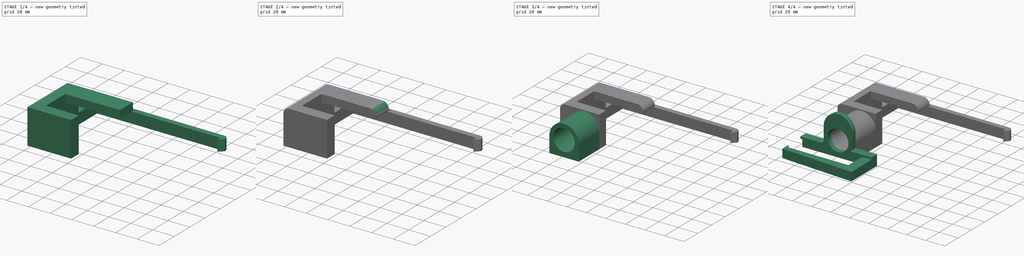
[diagram: build sequence overview — one tinted view per stage of 4, left to right]
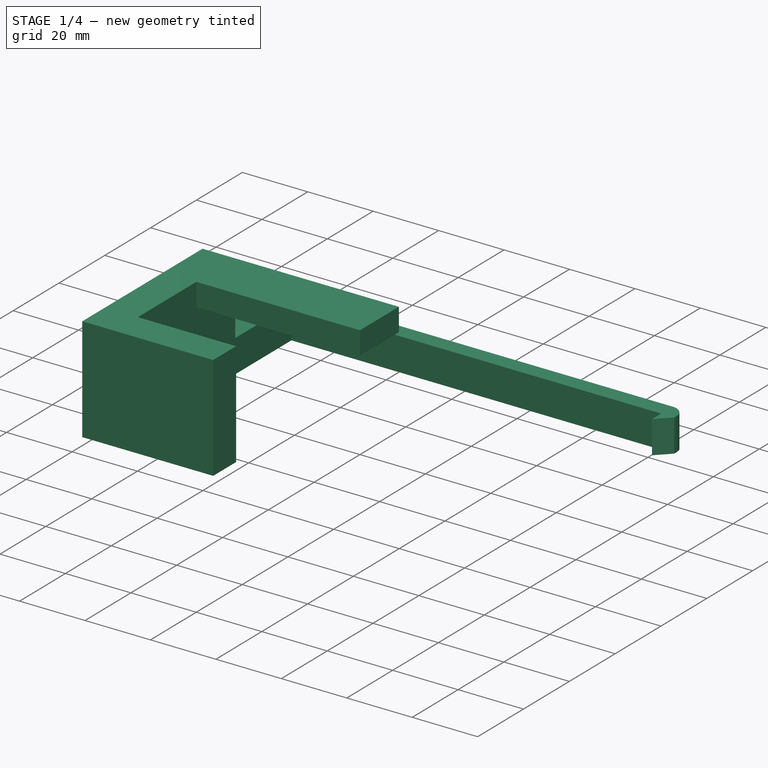
[diagram: stage 1 of 4 — iso view after this stage's code; geometry added in this stage tinted green]
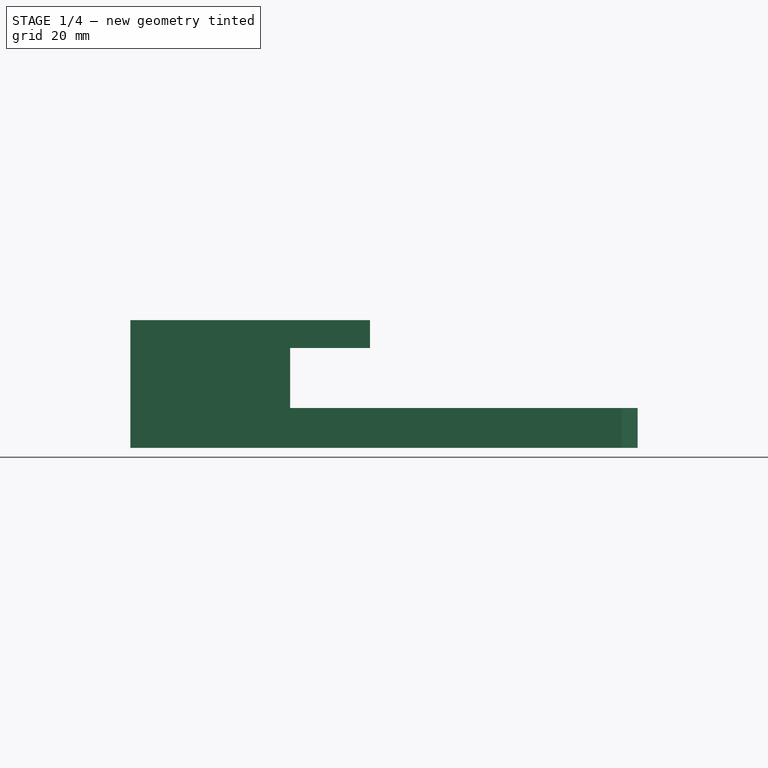
[diagram: stage 1 of 4 — front view after this stage's code; geometry added in this stage tinted green]
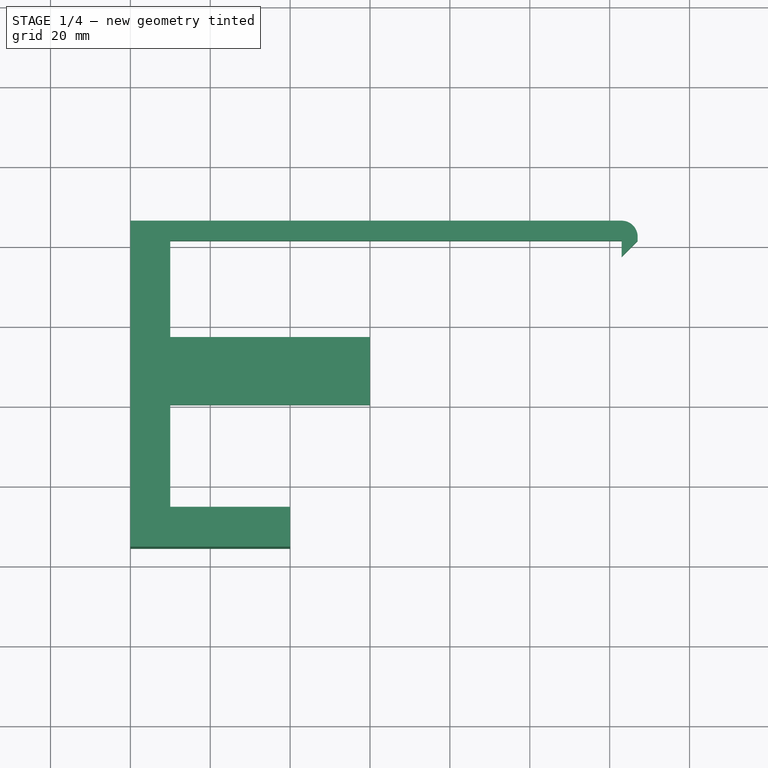
[diagram: stage 1 of 4 — top view after this stage's code; geometry added in this stage tinted green]
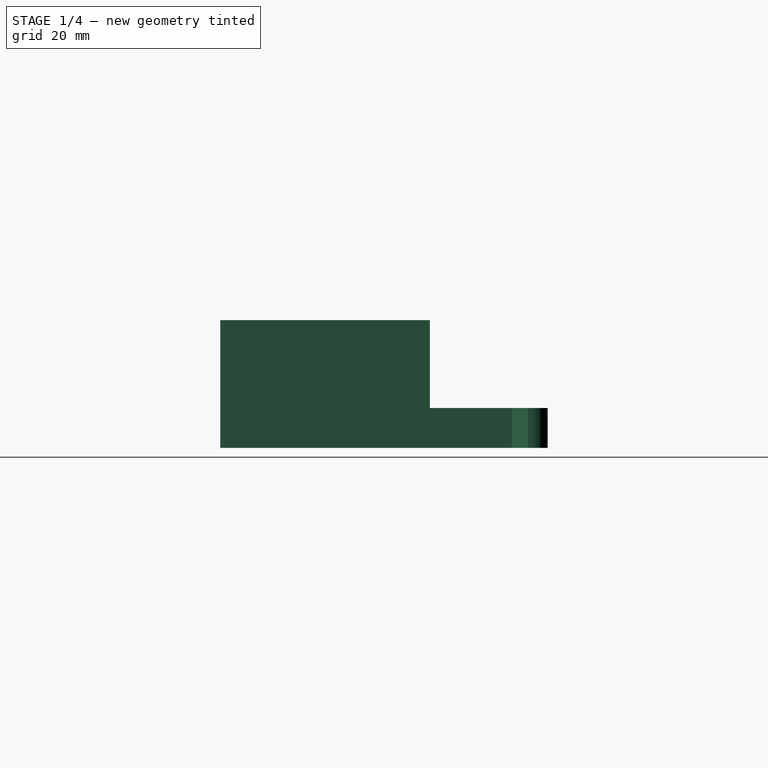
[diagram: stage 1 of 4 — right view after this stage's code; geometry added in this stage tinted green]
FCSTD DOCUMENT  (FreeCAD 0.20R)
Label: nuc_holder
License: All rights reserved
LicenseURL: http://en.wikipedia.org/wiki/All_rights_reserved
objects: Sketcher::SketchObject×8, PartDesign::Pad×7, PartDesign::Fillet×3, PartDesign::Pocket×1, PartDesign::Body×1
note: 31 computed .brp shape members not serialized (recipe doc carries the construction recipe); baked Part::Feature solids carry a one-line shape summary decoded from their .brp

FEATURE [Sketcher::SketchObject] Sketch
  FullyConstrained = true
  MapMode = 5
  Support = -> [XY_Plane]
  sketch-geometry (18):
    g0: LineSegment StartX=123 StartY=46.5 StartZ=0 EndX=0 EndY=46.5 EndZ=0
    g1: LineSegment StartX=0 StartY=46.5 StartZ=0 EndX=0 EndY=-35.5 EndZ=0
    g2: LineSegment StartX=0 StartY=-35.5 StartZ=0 EndX=40 EndY=-35.5 EndZ=0
    g3: LineSegment StartX=40 StartY=-35.5 StartZ=0 EndX=40 EndY=-25.5 EndZ=0
    g4: LineSegment StartX=40 StartY=-25.5 StartZ=0 EndX=10 EndY=-25.5 EndZ=0
    g5: LineSegment StartX=10 StartY=-25.5 StartZ=0 EndX=10 EndY=41.5 EndZ=0
    g6: LineSegment StartX=10 StartY=41.5 StartZ=0 EndX=123 EndY=41.5 EndZ=0
    g7: LineSegment StartX=123 StartY=41.5 StartZ=0 EndX=123 EndY=37.5 EndZ=0
    g8: LineSegment StartX=40 StartY=-25.5 StartZ=0 EndX=40 EndY=0 EndZ=0
    g9: LineSegment StartX=10 StartY=-25.5 StartZ=0 EndX=0 EndY=-25.5 EndZ=0
    g10: LineSegment StartX=10 StartY=41.5 StartZ=0 EndX=10 EndY=46.5 EndZ=0
    g11: LineSegment StartX=123 StartY=37.5 StartZ=0 EndX=127 EndY=41.5 EndZ=0
    g12: LineSegment StartX=123 StartY=41.5 StartZ=0 EndX=127 EndY=41.5 EndZ=0
    g13: LineSegment StartX=123 StartY=41.5 StartZ=0 EndX=123 EndY=46.5 EndZ=0
    g14: ArcOfCircle CenterX=123 CenterY=42.5 CenterZ=0 NormalX=0 NormalY=0 NormalZ=1 AngleXU=0 Radius=4 StartAngle=0 EndAngle=1.5708
    g15: LineSegment StartX=127 StartY=41.5 StartZ=0 EndX=127 EndY=42.5 EndZ=0
    g16: LineSegment StartX=40 StartY=0 StartZ=0 EndX=40 EndY=41.5 EndZ=0
    g17: LineSegment StartX=123 StartY=42.5 StartZ=0 EndX=127 EndY=42.5 EndZ=0
  constraints (52):
    c: PointOnObject(g0,g-2)
    c: Horizontal(g0)
    c: Coincident(g1,g0)
    c: Vertical(g1)
    c: Coincident(g2,g1)
    c: Horizontal(g2)
    c: Coincident(g3,g2)
    c: Coincident(g4,g3)
    c: Horizontal(g4)
    c: Coincident(g5,g4)
    c: Vertical(g5)
    c: Coincident(g6,g5)
    c: Horizontal(g6)
    c: Coincident(g7,g6)
    c: Coincident(g8,g3)
    c: PointOnObject(g8,g-1)
    c: Vertical(g8)
    c: Distance(g8) = 25.5
    c: Vertical(g3)
    c: Coincident(g9,g4)
    c: PointOnObject(g9,g1)
    c: Horizontal(g9)
    c: Equal(g9,g3)
    c: Distance(g3) = 10
    c: Distance(g4) = 30
    c: Coincident(g10,g5)
    c: PointOnObject(g10,g0)
    c: Vertical(g10)
    c: Distance(g10) = 5
    c: Vertical(g7)
    c: Coincident(g11,g7)
    c: Coincident(g12,g6)
    c: Coincident(g12,g11)
    c: Equal(g12,g7)
    c: Horizontal(g12)
    c: Coincident(g13,g6)
    c: Coincident(g13,g0)
    c: Vertical(g13)
    c: Distance(g7) = 4
    c: Coincident(g14,g0)
    c: Coincident(g15,g11)
    c: Coincident(g15,g14)
    c: Vertical(g15)
    c: Coincident(g16,g8)
    c: PointOnObject(g16,g6)
    c: Vertical(g16)
    c: Distance(g16) = 41.5
    c: Distance(g6) = 113
    c: PointOnObject(g14,g13)
    c: Coincident(g17,g14)
    c: Coincident(g17,g14)
    c: Horizontal(g17)
FEATURE [PartDesign::Pad] Pad
  Direction = (0,0,1)
  Length = 10
  Length2 = 10
  Profile = -> Sketch
  ReferenceAxis = -> Sketch [N_Axis]
  Type = 0
FEATURE [Sketcher::SketchObject] Sketch002
  ExternalGeometry = -> [Pad]
  FullyConstrained = true
  MapMode = 5
  Placement = pos=(0,0,10) rot=(0,0,1;0rad)
  Support = -> [Pad]
  sketch-geometry (9):
    g0: LineSegment StartX=0 StartY=-35.5 StartZ=0 EndX=40 EndY=-35.5 EndZ=0
    g1: LineSegment StartX=40 StartY=-35.5 StartZ=0 EndX=40 EndY=-25.5 EndZ=0
    g2: LineSegment StartX=40 StartY=-25.5 StartZ=0 EndX=10 EndY=-25.5 EndZ=0
    g3: LineSegment StartX=10 StartY=-25.5 StartZ=0 EndX=10 EndY=17 EndZ=0
    g4: LineSegment StartX=10 StartY=17 StartZ=0 EndX=0 EndY=17 EndZ=0
    g5: LineSegment StartX=0 StartY=17 StartZ=0 EndX=0 EndY=-35.5 EndZ=0
    g6: LineSegment StartX=5 StartY=17 StartZ=0 EndX=5 EndY=0 EndZ=0
    g7: LineSegment StartX=0 StartY=0 StartZ=0 EndX=5 EndY=17 EndZ=0
    g8: LineSegment StartX=5 StartY=0 StartZ=0 EndX=10 EndY=17 EndZ=0
  constraints (22):
    c: Coincident(g-3,g0)
    c: Coincident(g0,g-4)
    c: Coincident(g0,g1)
    c: Coincident(g1,g-4)
    c: Coincident(g1,g2)
    c: Coincident(g2,g-5)
    c: Coincident(g2,g3)
    c: PointOnObject(g3,g-5)
    c: Coincident(g3,g4)
    c: Horizontal(g4)
    c: Coincident(g4,g5)
    c: Coincident(g5,g0)
    c: Vertical(g5)
    c: PointOnObject(g6,g4)
    c: PointOnObject(g6,g-1)
    c: Vertical(g6)
    c: Distance(g6) = 17
    c: Coincident(g7,g-1)
    c: Coincident(g7,g6)
    c: Coincident(g8,g6)
    c: Coincident(g8,g3)
    c: Equal(g8,g7)
FEATURE [PartDesign::Pad] Pad001
  BaseFeature = -> Pad
  Direction = (0,0,1)
  Length = 22
  Length2 = 10
  Profile = -> Sketch002
  ReferenceAxis = -> Sketch002 [N_Axis]
  Type = 0
FEATURE [Sketcher::SketchObject] Sketch003
  ExternalGeometry = -> [Pad001]
  FullyConstrained = true
  MapMode = 5
  Placement = pos=(10,-1.25699e-11,0) rot=(0.57735,0.57735,0.57735;2.0944rad)
  Support = -> [Pad001]
  sketch-geometry (4):
    g0: LineSegment StartX=17 StartY=32 StartZ=0 EndX=0 EndY=32 EndZ=0
    g1: LineSegment StartX=0 StartY=32 StartZ=0 EndX=0 EndY=25 EndZ=0
    g2: LineSegment StartX=0 StartY=25 StartZ=0 EndX=17 EndY=25 EndZ=0
    g3: LineSegment StartX=17 StartY=25 StartZ=0 EndX=17 EndY=32 EndZ=0
  constraints (11):
    c: Coincident(g0,g1)
    c: Coincident(g1,g2)
    c: Coincident(g2,g3)
    c: Coincident(g3,g0)
    c: Horizontal(g0)
    c: Horizontal(g2)
    c: Vertical(g1)
    c: Vertical(g3)
    c: Coincident(g0,g-4)
    c: PointOnObject(g1,g-2)
    c: Distance(g3) = 7
FEATURE [PartDesign::Pad] Pad002
  BaseFeature = -> Pad001
  Direction = (1,-1.2569e-12,-1e-16)
  Length = 50
  Length2 = 10
  Profile = -> Sketch003
  ReferenceAxis = -> Sketch003 [N_Axis]
  Type = 0
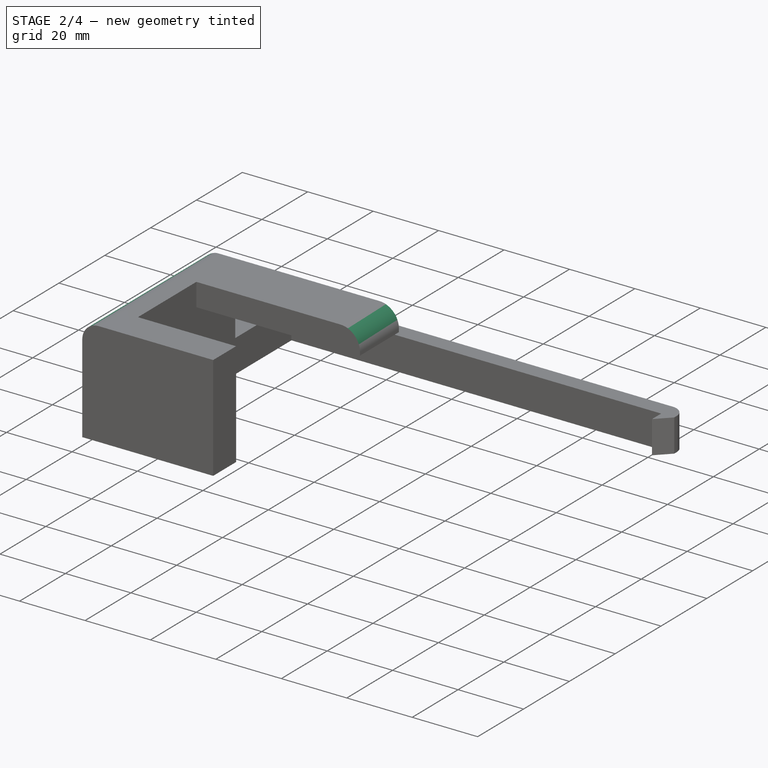
[diagram: stage 2 of 4 — iso view after this stage's code; geometry added in this stage tinted green]
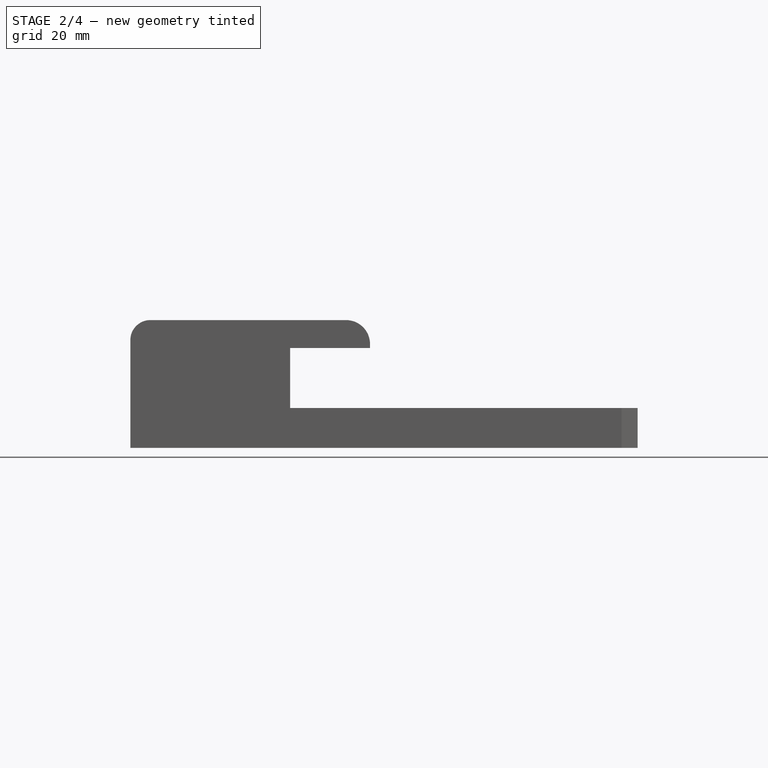
[diagram: stage 2 of 4 — front view after this stage's code; geometry added in this stage tinted green]
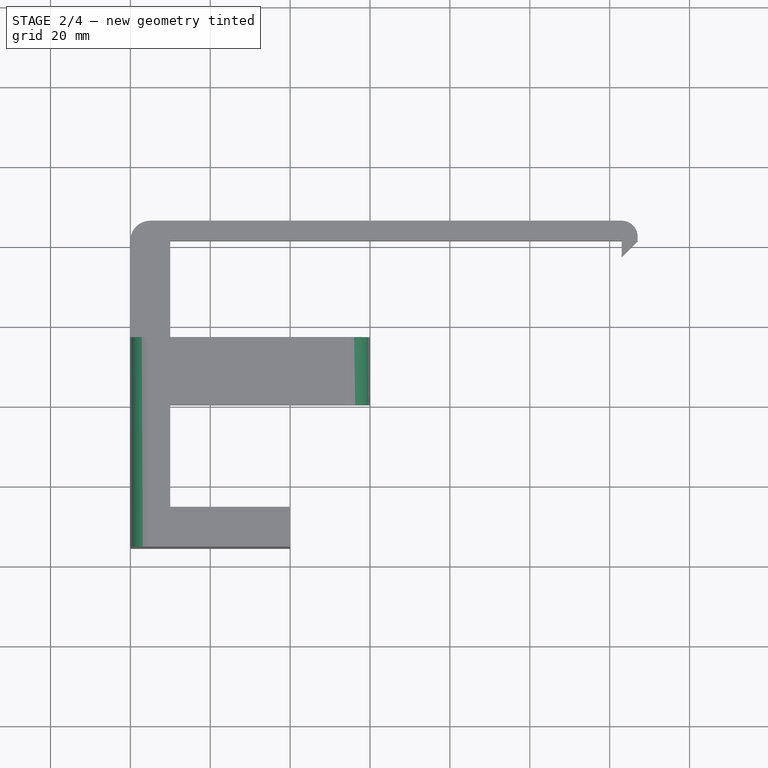
[diagram: stage 2 of 4 — top view after this stage's code; geometry added in this stage tinted green]
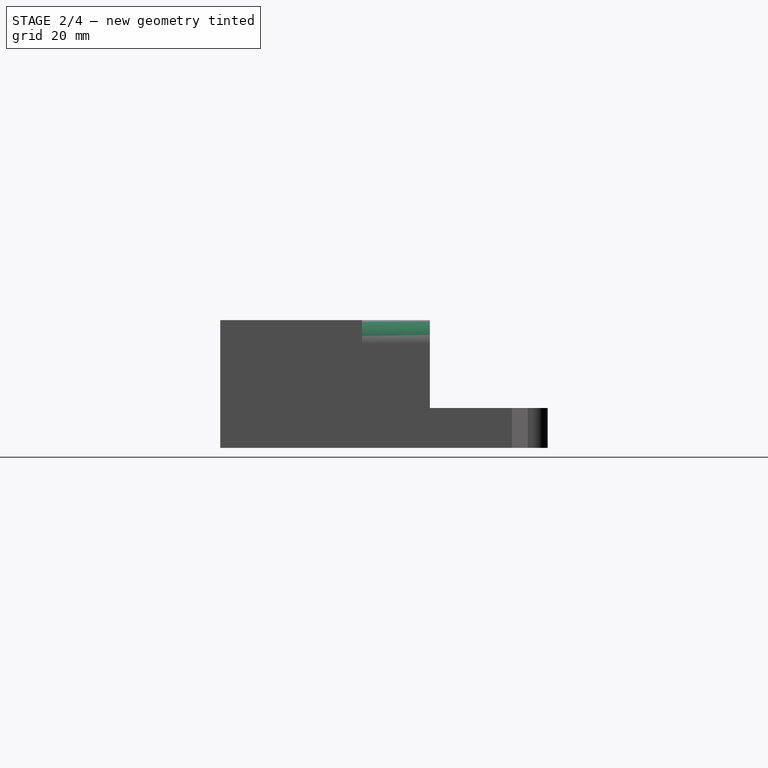
[diagram: stage 2 of 4 — right view after this stage's code; geometry added in this stage tinted green]
FEATURE [PartDesign::Fillet] Fillet
  Base = -> Pad002 [Edge57]
  BaseFeature = -> Pad002
  Radius = 6
  SupportTransform = false
  UseAllEdges = false
FEATURE [PartDesign::Fillet] Fillet001
  Base = -> Fillet [Edge45]
  BaseFeature = -> Fillet
  Radius = 5
  SupportTransform = false
  UseAllEdges = false
FEATURE [PartDesign::Fillet] Fillet002
  Base = -> Fillet001 [Edge42]
  BaseFeature = -> Fillet001
  Radius = 5
  SupportTransform = false
  UseAllEdges = false
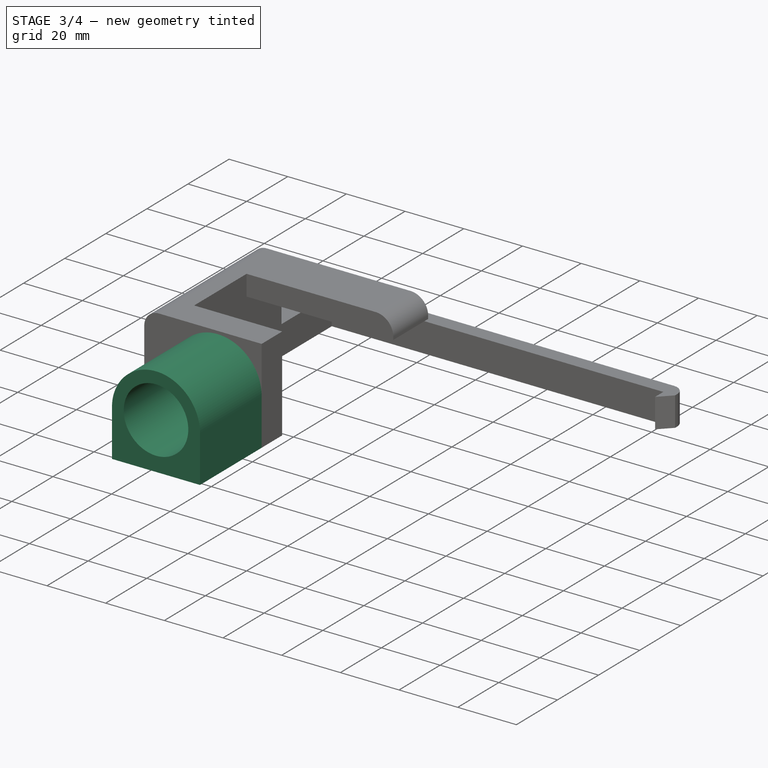
[diagram: stage 3 of 4 — iso view after this stage's code; geometry added in this stage tinted green]
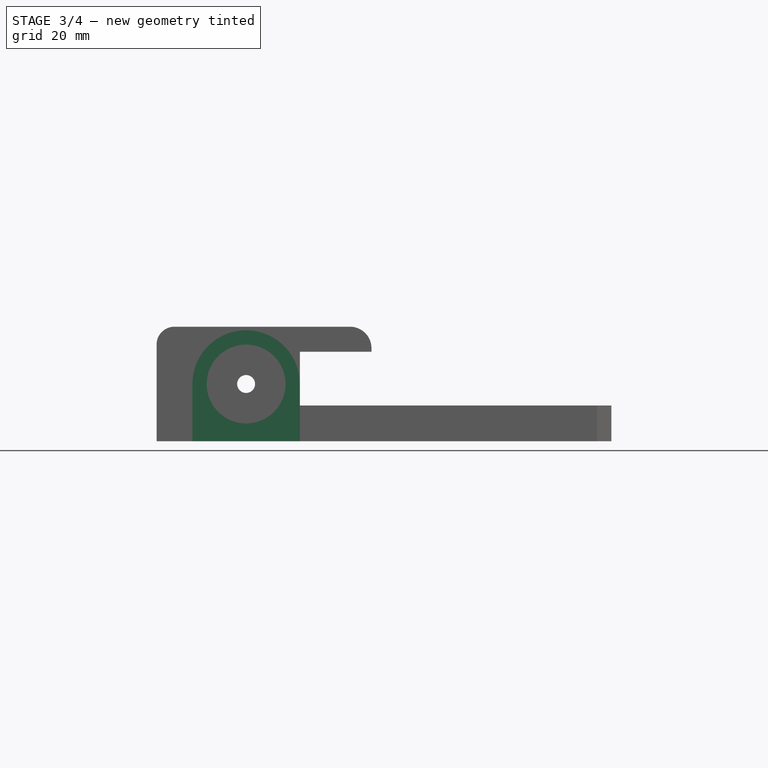
[diagram: stage 3 of 4 — front view after this stage's code; geometry added in this stage tinted green]
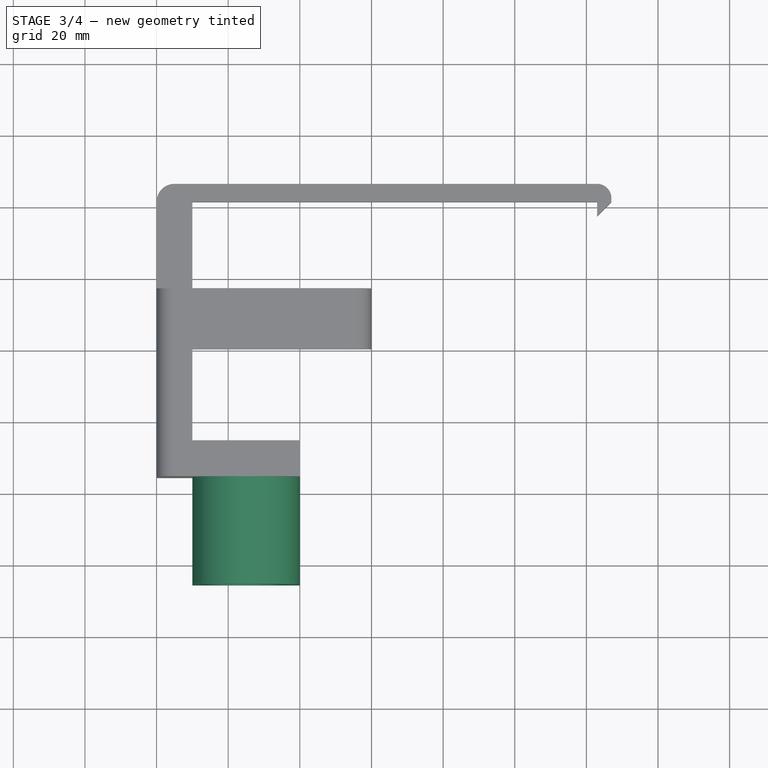
[diagram: stage 3 of 4 — top view after this stage's code; geometry added in this stage tinted green]
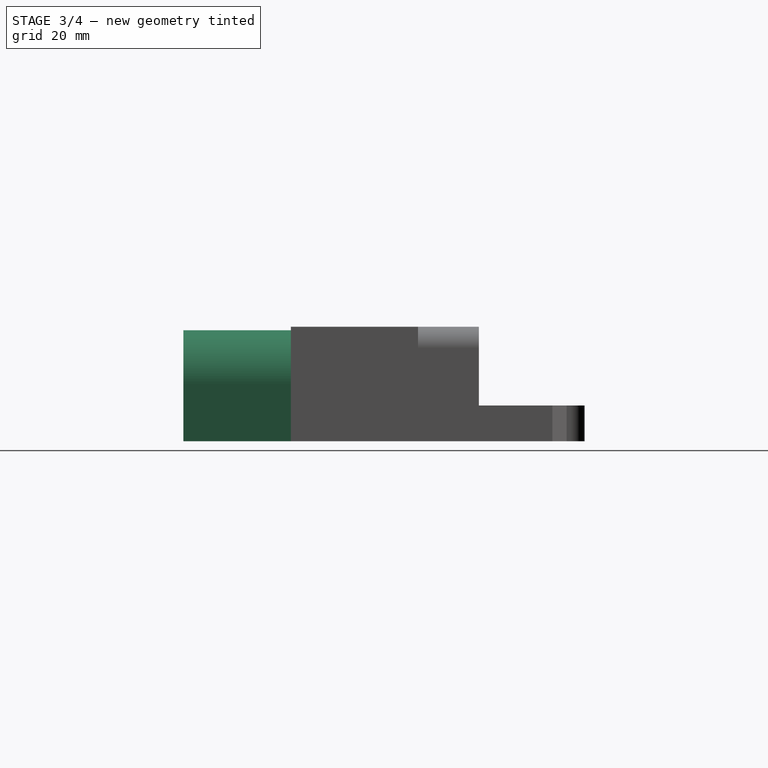
[diagram: stage 3 of 4 — right view after this stage's code; geometry added in this stage tinted green]
FEATURE [Sketcher::SketchObject] Sketch004
  ExternalGeometry = -> [Fillet002]
  FullyConstrained = true
  MapMode = 5
  Placement = pos=(0,-25.5,0) rot=(0,0.707107,0.707107;3.14159rad)
  Support = -> [Fillet002]
  sketch-geometry (5):
    g0: LineSegment StartX=-40 StartY=32 StartZ=0 EndX=-25 EndY=16 EndZ=0
    g1: LineSegment StartX=-25 StartY=16 StartZ=0 EndX=-10 EndY=-1.8e-15 EndZ=0
    g2: LineSegment StartX=-25 StartY=16 StartZ=0 EndX=-10 EndY=32 EndZ=0
    g3: LineSegment StartX=-25 StartY=16 StartZ=0 EndX=-40 EndY=0 EndZ=0
    g4: Circle CenterX=-25 CenterY=16 CenterZ=0 NormalX=0 NormalY=0 NormalZ=1 AngleXU=0 Radius=2.5
  constraints (11):
    c: Coincident(g0,g-3)
    c: Coincident(g1,g0)
    c: Coincident(g1,g-4)
    c: Coincident(g2,g0)
    c: Coincident(g2,g-3)
    c: Coincident(g3,g0)
    c: Coincident(g3,g-4)
    c: Equal(g3,g0)
    c: Equal(g0,g2)
    c: Coincident(g4,g0)
    c: Diameter(g4) = 5
FEATURE [PartDesign::Pocket] Pocket
  BaseFeature = -> Fillet002
  Direction = (0,-1,2e-16)
  Length = 5
  Length2 = 5
  Profile = -> Sketch004
  ReferenceAxis = -> Sketch004 [N_Axis]
  Type = 1
FEATURE [Sketcher::SketchObject] Sketch005
  ExternalGeometry = -> [Pocket]
  FullyConstrained = true
  MapMode = 5
  Placement = pos=(-6.4e-15,-35.5,0) rot=(1,0,0;1.5708rad)
  Support = -> [Pocket]
  sketch-geometry (9):
    g0: ArcOfCircle CenterX=25 CenterY=16 CenterZ=0 NormalX=0 NormalY=0 NormalZ=1 AngleXU=0 Radius=15 StartAngle=0 EndAngle=3.14159
    g1: LineSegment StartX=10 StartY=16 StartZ=0 EndX=25 EndY=16 EndZ=0
    g2: LineSegment StartX=25 StartY=16 StartZ=0 EndX=40 EndY=16 EndZ=0
    g3: LineSegment StartX=10 StartY=16 StartZ=0 EndX=10 EndY=0 EndZ=0
    g4: LineSegment StartX=10 StartY=0 StartZ=0 EndX=40 EndY=0 EndZ=0
    g5: LineSegment StartX=40 StartY=0 StartZ=0 EndX=40 EndY=16 EndZ=0
    g6: Circle CenterX=25 CenterY=16 CenterZ=0 NormalX=0 NormalY=0 NormalZ=1 AngleXU=0 Radius=11
    g7: LineSegment StartX=25 StartY=27 StartZ=0 EndX=25 EndY=31 EndZ=0
    g8: LineSegment StartX=25 StartY=27 StartZ=0 EndX=25 EndY=16 EndZ=0
  constraints (23):
    c: Coincident(g0,g-5)
    c: PointOnObject(g0,g-3)
    c: Coincident(g1,g0)
    c: Coincident(g1,g0)
    c: Horizontal(g1)
    c: Coincident(g2,g0)
    c: Coincident(g2,g0)
    c: Horizontal(g2)
    c: Coincident(g3,g0)
    c: PointOnObject(g3,g-1)
    c: Vertical(g3)
    c: Coincident(g4,g3)
    c: Coincident(g4,g-4)
    c: Coincident(g5,g4)
    c: Coincident(g5,g0)
    c: Coincident(g6,g0)
    c: PointOnObject(g7,g6)
    c: PointOnObject(g7,g0)
    c: Vertical(g7)
    c: Coincident(g8,g7)
    c: Coincident(g8,g0)
    c: Vertical(g8)
    c: Distance(g7) = 4
FEATURE [PartDesign::Pad] Pad003
  BaseFeature = -> Pocket
  Direction = (-2e-16,-1,2e-16)
  Length = 30
  Length2 = 10
  Profile = -> Sketch005
  ReferenceAxis = -> Sketch005 [N_Axis]
  Type = 0
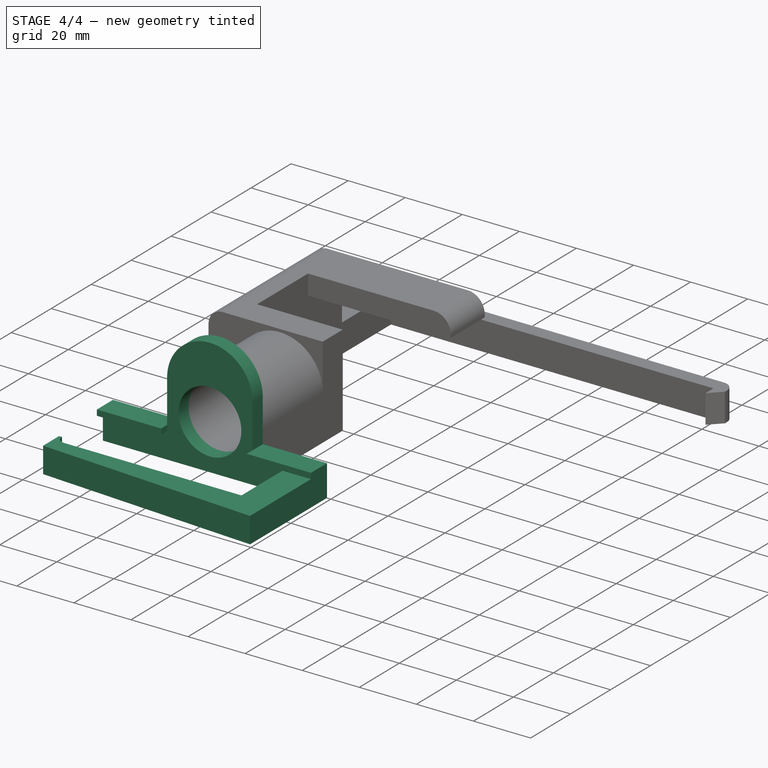
[diagram: stage 4 of 4 — iso view after this stage's code; geometry added in this stage tinted green]
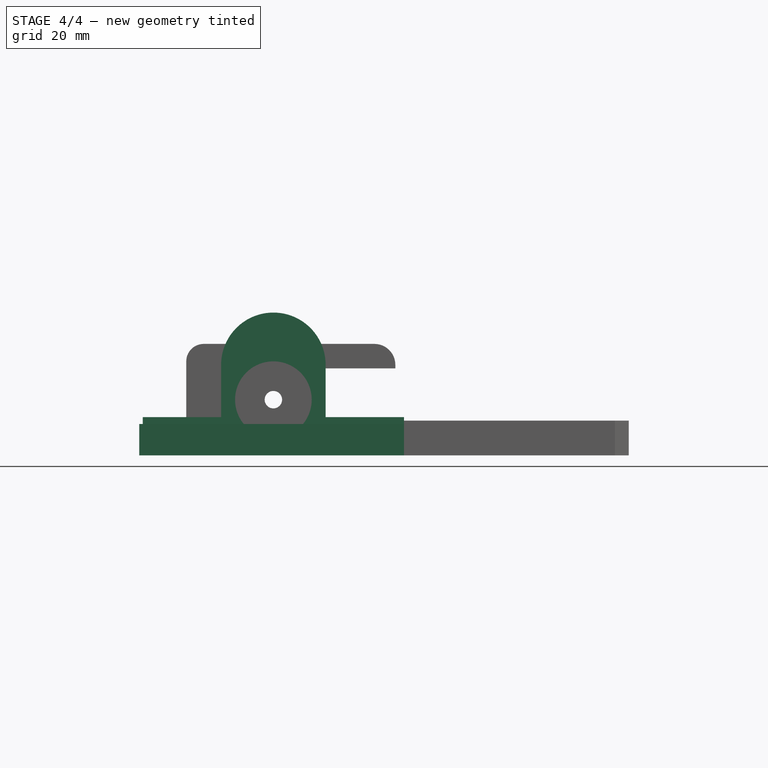
[diagram: stage 4 of 4 — front view after this stage's code; geometry added in this stage tinted green]
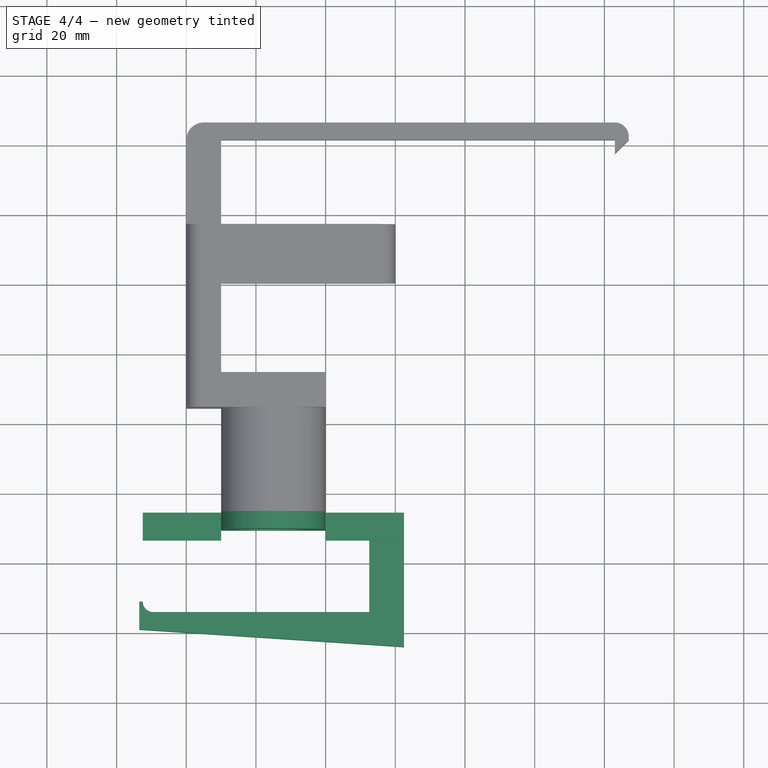
[diagram: stage 4 of 4 — top view after this stage's code; geometry added in this stage tinted green]
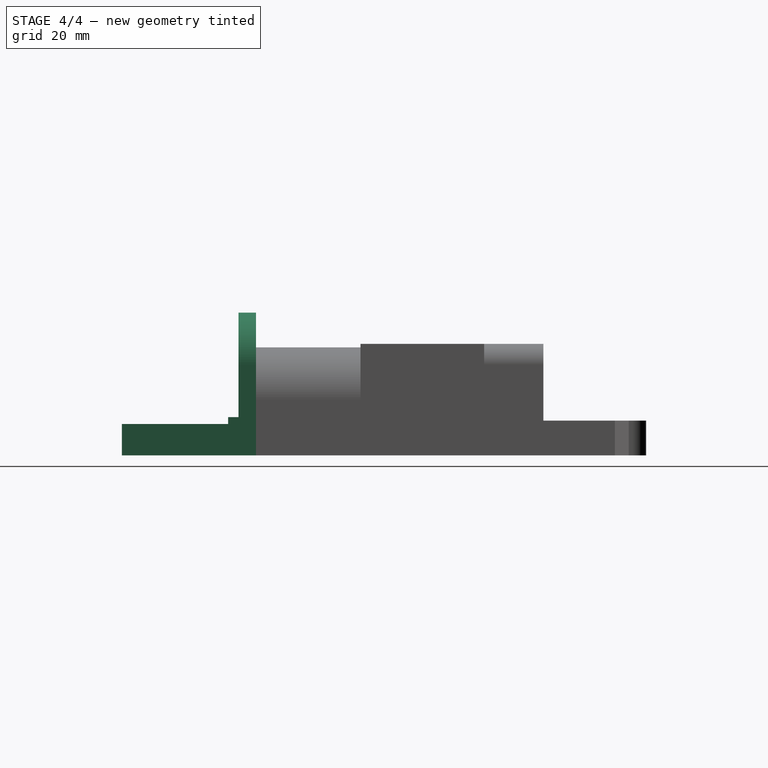
[diagram: stage 4 of 4 — right view after this stage's code; geometry added in this stage tinted green]
FEATURE [Sketcher::SketchObject] Sketch006
  ExternalGeometry = -> [Pad003]
  FullyConstrained = true
  MapMode = 5
  Placement = pos=(-1.18e-14,-65.5,6.5e-15) rot=(1,0,0;1.5708rad)
  Support = -> [Pad003]
  sketch-geometry (13):
    g0: Circle CenterX=25 CenterY=16 CenterZ=0 NormalX=0 NormalY=0 NormalZ=1 AngleXU=0 Radius=11
    g1: LineSegment StartX=10 StartY=16 StartZ=0 EndX=14 EndY=16 EndZ=0
    g2: LineSegment StartX=25 StartY=16 StartZ=0 EndX=25 EndY=26 EndZ=0
    g3: LineSegment StartX=10 StartY=26 StartZ=0 EndX=25 EndY=26 EndZ=0
    g4: LineSegment StartX=25 StartY=26 StartZ=0 EndX=40 EndY=26 EndZ=0
    g5: ArcOfCircle CenterX=25 CenterY=26 CenterZ=0 NormalX=0 NormalY=0 NormalZ=1 AngleXU=0 Radius=15 StartAngle=0 EndAngle=3.14159
    g6: LineSegment StartX=40 StartY=11 StartZ=0 EndX=40 EndY=26 EndZ=0
    g7: LineSegment StartX=10 StartY=11 StartZ=0 EndX=-12.5 EndY=11 EndZ=0
    g8: LineSegment StartX=-12.5 StartY=11 StartZ=0 EndX=-12.5 EndY=0 EndZ=0
    g9: LineSegment StartX=-12.5 StartY=0 StartZ=0 EndX=62.5 EndY=0 EndZ=0
    g10: LineSegment StartX=62.5 StartY=0 StartZ=0 EndX=62.5 EndY=11 EndZ=0
    g11: LineSegment StartX=62.5 StartY=11 StartZ=0 EndX=40 EndY=11 EndZ=0
    g12: LineSegment StartX=10 StartY=11 StartZ=0 EndX=10 EndY=26 EndZ=0
  constraints (36):
    c: Coincident(g0,g-4)
    c: Coincident(g1,g-3)
    c: PointOnObject(g1,g-4)
    c: Horizontal(g1)
    c: PointOnObject(g1,g0)
    c: Coincident(g2,g0)
    c: Vertical(g2)
    c: Distance(g2) = 10
    c: Coincident(g3,g2)
    c: Horizontal(g3)
    c: Coincident(g4,g2)
    c: Coincident(g4,g6)
    c: Coincident(g5,g2)
    c: Coincident(g5,g6)
    c: Vertical(g6)
    c: Horizontal(g7)
    c: Coincident(g8,g7)
    c: PointOnObject(g8,g-1)
    c: Vertical(g8)
    c: Coincident(g9,g8)
    c: Horizontal(g9)
    c: Coincident(g10,g9)
    c: Vertical(g10)
    c: Coincident(g11,g10)
    c: Coincident(g11,g6)
    c: Horizontal(g11)
    c: Equal(g7,g11)
    c: Distance(g8) = 11
    c: Equal(g10,g8)
    c: Distance(g9) = 75
    c: Coincident(g3,g5)
    c: PointOnObject(g-5,g6)
    c: Horizontal(g4)
    c: Coincident(g12,g7)
    c: Coincident(g12,g5)
    c: Vertical(g12)
FEATURE [PartDesign::Pad] Pad004
  BaseFeature = -> Pad003
  Direction = (-2e-16,-1,2e-16)
  Length = 5
  Length2 = 10
  Profile = -> Sketch006
  ReferenceAxis = -> Sketch006 [N_Axis]
  Type = 0
FEATURE [Sketcher::SketchObject] Sketch007
  ExternalGeometry = -> [Pad004]
  FullyConstrained = true
  MapMode = 5
  Placement = pos=(0,0,-8e-15) rot=(1,0,0;3.14159rad)
  Support = -> [Pad004]
  sketch-geometry (16):
    g0: LineSegment StartX=52.5 StartY=70.5 StartZ=0 EndX=52.5 EndY=94 EndZ=0
    g1: LineSegment StartX=52.5 StartY=94 StartZ=0 EndX=62.5 EndY=94 EndZ=0
    g2: LineSegment StartX=52.5 StartY=94 StartZ=0 EndX=-12.5 EndY=94 EndZ=0
    g3: LineSegment StartX=52.5 StartY=94 StartZ=0 EndX=-9.5 EndY=94 EndZ=0
    g4: ArcOfCircle CenterX=-9.5 CenterY=91 CenterZ=0 NormalX=0 NormalY=0 NormalZ=1 AngleXU=0 Radius=3 StartAngle=1.5708 EndAngle=3.14159
    g5: LineSegment StartX=-12.5 StartY=91 StartZ=0 EndX=-9.5 EndY=91 EndZ=0
    g6: LineSegment StartX=-9.5 StartY=91 StartZ=0 EndX=-9.5 EndY=94 EndZ=0
    g7: LineSegment StartX=-12.5 StartY=94 StartZ=0 EndX=-12.5 EndY=91 EndZ=0
    g8: LineSegment StartX=-12.5 StartY=91 StartZ=0 EndX=-13.5 EndY=91 EndZ=0
    g9: LineSegment StartX=-13.5 StartY=91 StartZ=0 EndX=-13.5 EndY=99 EndZ=0
    g10: LineSegment StartX=-9.5 StartY=94 StartZ=0 EndX=-9.5 EndY=99 EndZ=0
    g11: LineSegment StartX=-9.5 StartY=99 StartZ=0 EndX=-13.5 EndY=99 EndZ=0
    g12: LineSegment StartX=62.5 StartY=104 StartZ=0 EndX=-13.5 EndY=99 EndZ=0
    g13: LineSegment StartX=62.5 StartY=70.5 StartZ=0 EndX=52.5 EndY=70.5 EndZ=0
    g14: LineSegment StartX=62.5 StartY=94 StartZ=0 EndX=62.5 EndY=70.5 EndZ=0
    g15: LineSegment StartX=62.5 StartY=104 StartZ=0 EndX=62.5 EndY=94 EndZ=0
  constraints (43):
    c: Vertical(g0)
    c: Vertical(g14)
    c: Coincident(g1,g0)
    c: Coincident(g1,g14)
    c: Horizontal(g1)
    c: Distance(g0) = 23.5
    c: Coincident(g2,g0)
    c: Horizontal(g2)
    c: Distance(g2) = 65
    c: Coincident(g3,g0)
    c: Horizontal(g3)
    c: Coincident(g4,g3)
    c: Coincident(g5,g4)
    c: Coincident(g5,g4)
    c: Horizontal(g5)
    c: Coincident(g6,g4)
    c: Coincident(g6,g3)
    c: Vertical(g6)
    c: Distance(g6) = 3
    c: Coincident(g7,g2)
    c: Coincident(g7,g4)
    c: Vertical(g7)
    c: Coincident(g8,g4)
    c: Horizontal(g8)
    c: Coincident(g9,g8)
    c: Vertical(g9)
    c: Distance(g8) = 1
    c: Coincident(g10,g3)
    c: Vertical(g10)
    c: Coincident(g11,g10)
    c: Coincident(g11,g9)
    c: Horizontal(g11)
    c: Distance(g10) = 5
    c: Coincident(g12,g9)
    c: Coincident(g13,g14)
    c: Coincident(g13,g0)
    c: Horizontal(g13)
    c: Distance(g13) = 10
    c: Coincident(g15,g12)
    c: Coincident(g15,g14)
    c: Vertical(g15)
    c: Equal(g15,g13)
    c: Coincident(g13,g-3)
FEATURE [PartDesign::Pad] Pad005
  BaseFeature = -> Pad004
  Direction = (0,-2e-16,-1)
  Length = 9
  Length2 = 10
  Profile = -> Sketch007
  ReferenceAxis = -> Sketch007 [N_Axis]
  Reversed = true
  Type = 0
FEATURE [Sketcher::SketchObject] Sketch008
  ExternalGeometry = -> [Pad005]
  FullyConstrained = true
  MapMode = 5
  Placement = pos=(-1.19e-14,-70.5,1.39e-14) rot=(1,0,0;1.5708rad)
  Support = -> [Pad005]
  sketch-geometry (8):
    g0: LineSegment StartX=40 StartY=11 StartZ=0 EndX=62.5 EndY=11 EndZ=0
    g1: LineSegment StartX=62.5 StartY=11 StartZ=0 EndX=62.5 EndY=9 EndZ=0
    g2: LineSegment StartX=62.5 StartY=9 StartZ=0 EndX=40 EndY=9 EndZ=0
    g3: LineSegment StartX=40 StartY=9 StartZ=0 EndX=40 EndY=11 EndZ=0
    g4: LineSegment StartX=10 StartY=11 StartZ=0 EndX=-12.5 EndY=11 EndZ=0
    g5: LineSegment StartX=-12.5 StartY=11 StartZ=0 EndX=-12.5 EndY=9 EndZ=0
    g6: LineSegment StartX=-12.5 StartY=9 StartZ=0 EndX=10 EndY=9 EndZ=0
    g7: LineSegment StartX=10 StartY=9 StartZ=0 EndX=10 EndY=11 EndZ=0
  constraints (20):
    c: Coincident(g0,g1)
    c: Coincident(g1,g2)
    c: Coincident(g2,g3)
    c: Coincident(g3,g0)
    c: Horizontal(g0)
    c: Horizontal(g2)
    c: Vertical(g1)
    c: Vertical(g3)
    c: Coincident(g0,g-4)
    c: Coincident(g1,g-5)
    c: Coincident(g4,g5)
    c: Coincident(g5,g6)
    c: Coincident(g6,g7)
    c: Coincident(g7,g4)
    c: Horizontal(g6)
    c: Vertical(g5)
    c: Vertical(g7)
    c: Coincident(g4,g-3)
    c: PointOnObject(g5,g-5)
    c: Coincident(g4,g-3)
FEATURE [PartDesign::Pad] Pad006
  BaseFeature = -> Pad005
  Direction = (-2e-16,-1,2e-16)
  Length = 3
  Length2 = 10
  Profile = -> Sketch008
  ReferenceAxis = -> Sketch008 [N_Axis]
  Type = 0
FEATURE [PartDesign::Body] Body
  Group = -> [Sketch,Pad,Sketch002,Pad001,Sketch003,Pad002,Fillet,Fillet001,Fillet002,Sketch004,Pocket,Sketch005,Pad003,Sketch006,Pad004,Sketch007,Pad005,Sketch008,Pad006]
  Origin = -> Origin
  Tip = -> Pad006
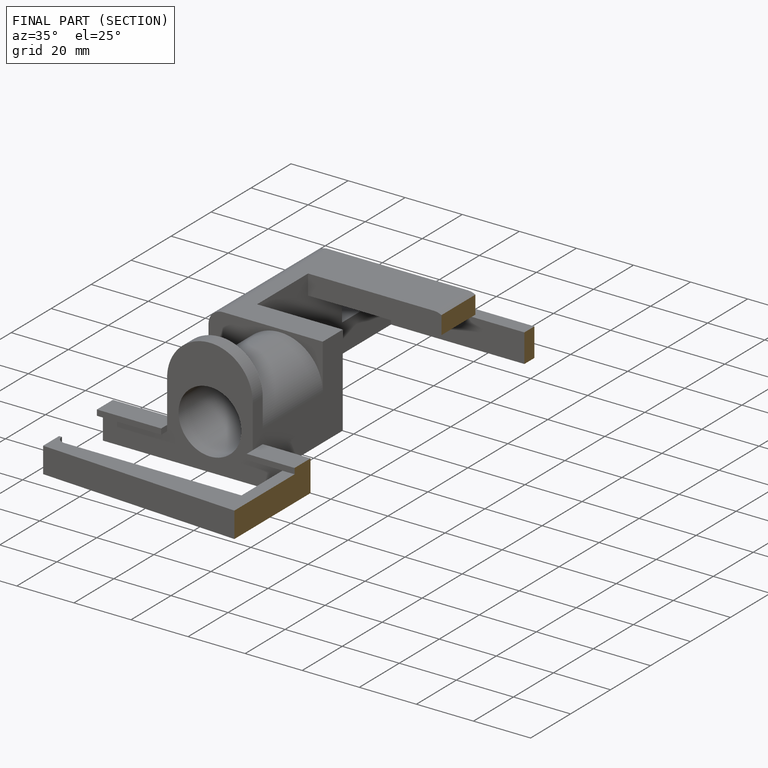
[diagram: finished part — half-section view (interior)]
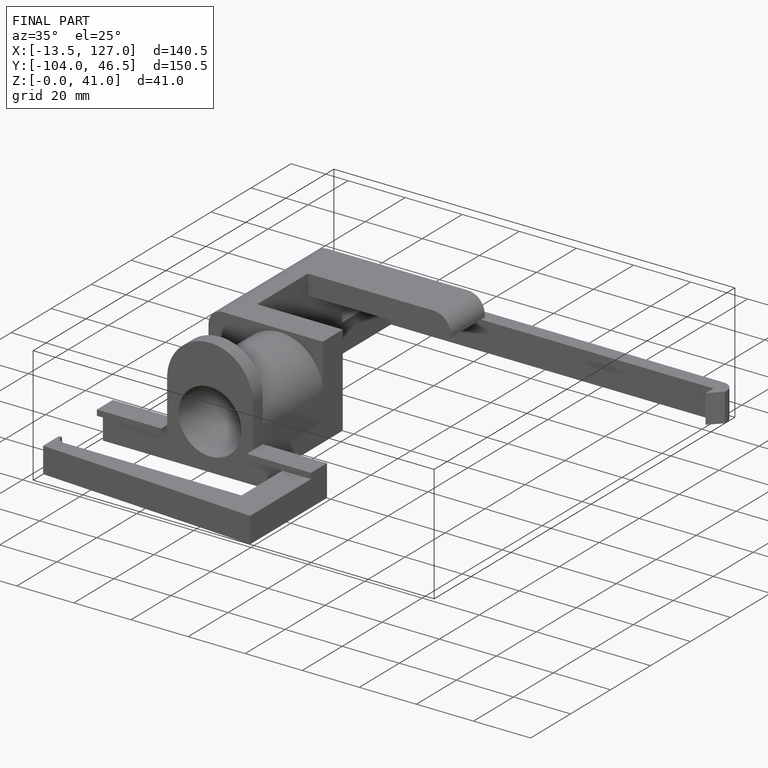
[diagram: finished part — iso view with bounding-box wireframe]
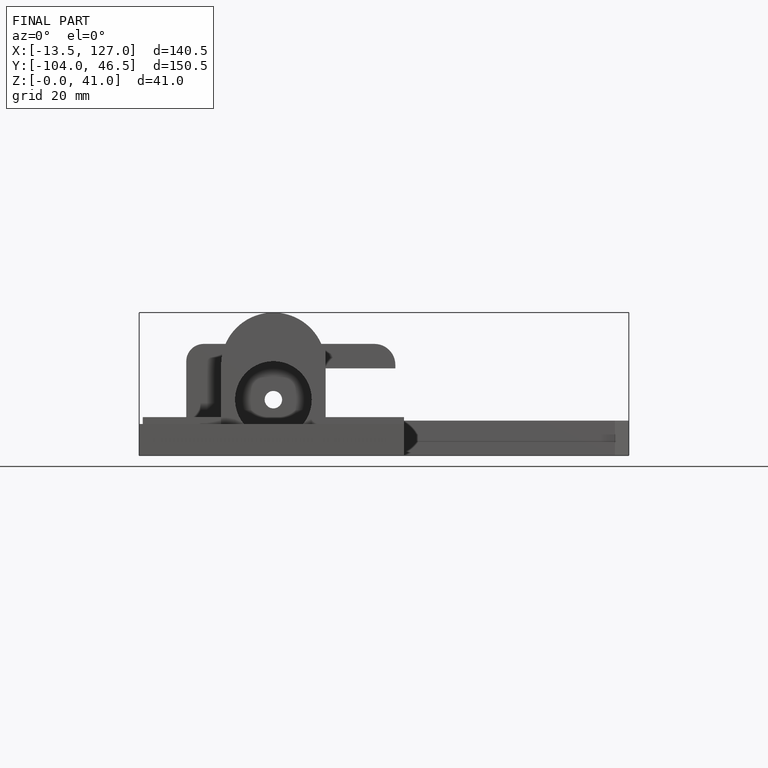
[diagram: finished part — front view with bounding-box wireframe]
